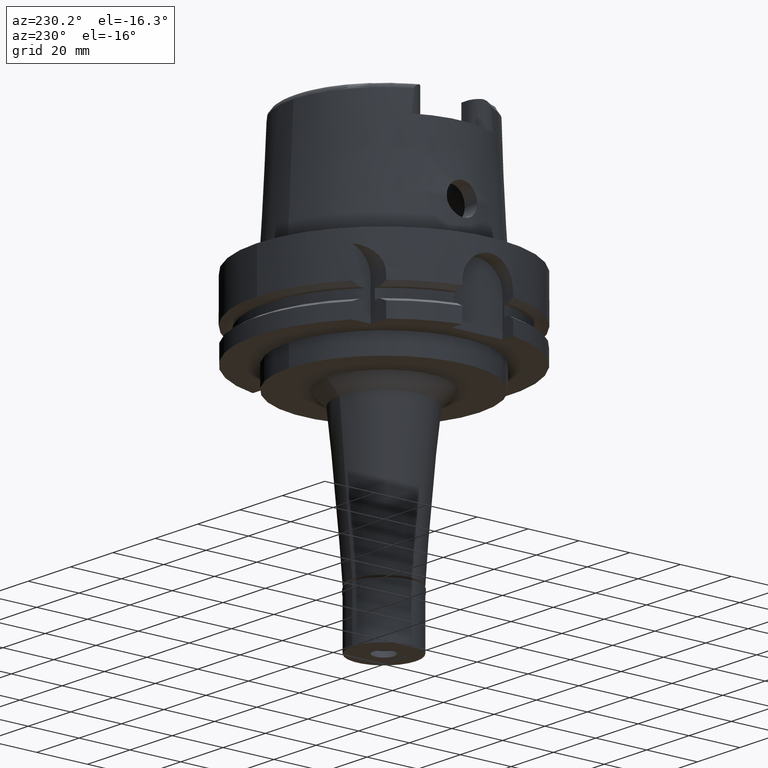
[diagram: clean part render]
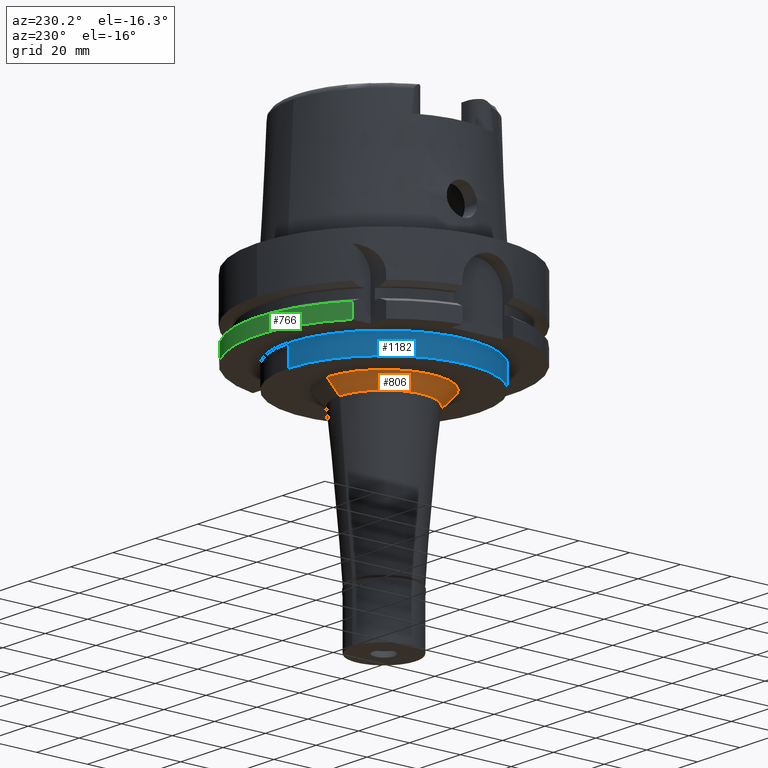
[diagram: same view with three faces highlighted in distinct colors, each labeled with its STEP entity id]
A machine part, auxiliary view with three faces highlighted in distinct colors.
Their STEP definitions:

[orange] entity #806 — the highlighted conical surface has half-angle 45 deg.
#64 = DIRECTION ( 'NONE',  ( 0.0000000000000000000, -0.7071067811865474617, -0.7071067811865474617 ) ) ;
#69 = EDGE_LOOP ( 'NONE', ( #3698, #1885, #2351, #2705 ) ) ;
#87 = CARTESIAN_POINT ( 'NONE',  ( 0.0000000000000000000, 22.46060722192000014, -37.00000000000000000 ) ) ;
#342 = CARTESIAN_POINT ( 'NONE',  ( 0.0000000000000000000, 22.46060722192000014, -37.00000000000000000 ) ) ;
#473 = DIRECTION ( 'NONE',  ( 0.0000000000000000000, 0.0000000000000000000, 1.000000000000000000 ) ) ;
#503 = CARTESIAN_POINT ( 'NONE',  ( 0.0000000000000000000, 0.0000000000000000000, -42.00000000000000000 ) ) ;
#574 = AXIS2_PLACEMENT_3D ( 'NONE', #2078, #1659, #2464 ) ;
#782 = CARTESIAN_POINT ( 'NONE',  ( 0.0000000000000000000, -22.46060722192000014, -37.00000000000000000 ) ) ;
#806 = ADVANCED_FACE ( 'NONE', ( #5165 ), #1758, .T. ) ;
#1074 = CARTESIAN_POINT ( 'NONE',  ( 0.0000000000000000000, -17.46060722192000014, -42.00000000000000000 ) ) ;
#1480 = AXIS2_PLACEMENT_3D ( 'NONE', #503, #2586, #3932 ) ;
#1659 = DIRECTION ( 'NONE',  ( 0.0000000000000000000, 0.0000000000000000000, -1.000000000000000000 ) ) ;
#1758 = CONICAL_SURFACE ( 'NONE', #4520, 19.96060722191999659, 0.7853981633972997312 ) ;
#1775 = DIRECTION ( 'NONE',  ( 0.0000000000000000000, 1.000000000000000000, 0.0000000000000000000 ) ) ;
#1812 = EDGE_CURVE ( 'NONE', #3992, #4165, #2143, .T. ) ;
#1816 = EDGE_CURVE ( 'NONE', #3992, #3560, #3094, .T. ) ;
#1885 = ORIENTED_EDGE ( 'NONE', *, *, #1812, .F. ) ;
#1894 = CARTESIAN_POINT ( 'NONE',  ( 0.0000000000000000000, 17.46060722192000014, -42.00000000000000000 ) ) ;
#1982 = EDGE_CURVE ( 'NONE', #4165, #4226, #3917, .T. ) ;
#2078 = CARTESIAN_POINT ( 'NONE',  ( 0.0000000000000000000, 0.0000000000000000000, -37.00000000000000000 ) ) ;
#2143 = LINE ( 'NONE', #782, #3815 ) ;
#2351 = ORIENTED_EDGE ( 'NONE', *, *, #1816, .T. ) ;
#2433 = DIRECTION ( 'NONE',  ( 0.0000000000000000000, 0.7071067811865474617, -0.7071067811865474617 ) ) ;
#2464 = DIRECTION ( 'NONE',  ( 0.0000000000000000000, -1.000000000000000000, 0.0000000000000000000 ) ) ;
#2586 = DIRECTION ( 'NONE',  ( 0.0000000000000000000, 0.0000000000000000000, -1.000000000000000000 ) ) ;
#2705 = ORIENTED_EDGE ( 'NONE', *, *, #4844, .T. ) ;
#3030 = CARTESIAN_POINT ( 'NONE',  ( 0.0000000000000000000, 0.0000000000000000000, -39.50000000000000000 ) ) ;
#3094 = CIRCLE ( 'NONE', #574, 22.46060722192000014 ) ;
#3560 = VERTEX_POINT ( 'NONE', #342 ) ;
#3698 = ORIENTED_EDGE ( 'NONE', *, *, #1982, .F. ) ;
#3815 = VECTOR ( 'NONE', #2433, 1000.000000000000114 ) ;
#3917 = CIRCLE ( 'NONE', #1480, 17.46060722192000014 ) ;
#3929 = CARTESIAN_POINT ( 'NONE',  ( 0.0000000000000000000, -22.46060722192000014, -37.00000000000000000 ) ) ;
#3932 = DIRECTION ( 'NONE',  ( 0.0000000000000000000, -1.000000000000000000, 0.0000000000000000000 ) ) ;
#3992 = VERTEX_POINT ( 'NONE', #3929 ) ;
#4165 = VERTEX_POINT ( 'NONE', #1074 ) ;
#4226 = VERTEX_POINT ( 'NONE', #1894 ) ;
#4520 = AXIS2_PLACEMENT_3D ( 'NONE', #3030, #473, #1775 ) ;
#4785 = LINE ( 'NONE', #87, #5350 ) ;
#4844 = EDGE_CURVE ( 'NONE', #3560, #4226, #4785, .T. ) ;
#5165 = FACE_OUTER_BOUND ( 'NONE', #69, .T. ) ;
#5350 = VECTOR ( 'NONE', #64, 1000.000000000000114 ) ;

[blue] entity #1182 — the highlighted cylindrical surface (partial cylindrical patch) has radius 37.5 mm, axis along (0, 0, 1).
#45 = AXIS2_PLACEMENT_3D ( 'NONE', #705, #2004, #1218 ) ;
#156 = DIRECTION ( 'NONE',  ( 0.0000000000000000000, 1.000000000000000000, 0.0000000000000000000 ) ) ;
#258 = ORIENTED_EDGE ( 'NONE', *, *, #2012, .T. ) ;
#263 = CARTESIAN_POINT ( 'NONE',  ( 0.0000000000000000000, -37.50000000000000000, -29.00000000000000000 ) ) ;
#319 = CARTESIAN_POINT ( 'NONE',  ( 0.0000000000000000000, -37.50000000000000000, -37.00000000000000000 ) ) ;
#436 = EDGE_LOOP ( 'NONE', ( #3121, #2441, #2720, #258 ) ) ;
#647 = VECTOR ( 'NONE', #4053, 1000.000000000000000 ) ;
#705 = CARTESIAN_POINT ( 'NONE',  ( 0.0000000000000000000, 0.0000000000000000000, -121.9899999999999949 ) ) ;
#838 = EDGE_CURVE ( 'NONE', #1177, #1202, #5408, .T. ) ;
#996 = DIRECTION ( 'NONE',  ( 0.0000000000000000000, 0.0000000000000000000, 1.000000000000000000 ) ) ;
#1000 = CARTESIAN_POINT ( 'NONE',  ( 0.0000000000000000000, 37.50000000000000000, -37.00000000000000000 ) ) ;
#1177 = VERTEX_POINT ( 'NONE', #2934 ) ;
#1182 = ADVANCED_FACE ( 'NONE', ( #2843 ), #4617, .T. ) ;
#1202 = VERTEX_POINT ( 'NONE', #319 ) ;
#1218 = DIRECTION ( 'NONE',  ( 0.0000000000000000000, 1.000000000000000000, 0.0000000000000000000 ) ) ;
#1292 = VERTEX_POINT ( 'NONE', #2209 ) ;
#1822 = CARTESIAN_POINT ( 'NONE',  ( 0.0000000000000000000, 37.50000000000000000, -29.00000000000000000 ) ) ;
#2004 = DIRECTION ( 'NONE',  ( 0.0000000000000000000, 0.0000000000000000000, 1.000000000000000000 ) ) ;
#2012 = EDGE_CURVE ( 'NONE', #1292, #3281, #2633, .T. ) ;
#2209 = CARTESIAN_POINT ( 'NONE',  ( 0.0000000000000000000, 37.50000000000000000, -29.00000000000000000 ) ) ;
#2283 = CIRCLE ( 'NONE', #5255, 37.50000000000000000 ) ;
#2441 = ORIENTED_EDGE ( 'NONE', *, *, #838, .F. ) ;
#2633 = LINE ( 'NONE', #1822, #4624 ) ;
#2720 = ORIENTED_EDGE ( 'NONE', *, *, #3452, .T. ) ;
#2843 = FACE_OUTER_BOUND ( 'NONE', #436, .T. ) ;
#2934 = CARTESIAN_POINT ( 'NONE',  ( 0.0000000000000000000, -37.50000000000000000, -29.00000000000000000 ) ) ;
#3121 = ORIENTED_EDGE ( 'NONE', *, *, #4395, .T. ) ;
#3165 = CARTESIAN_POINT ( 'NONE',  ( 0.0000000000000000000, 0.0000000000000000000, -29.00000000000000000 ) ) ;
#3195 = DIRECTION ( 'NONE',  ( 0.0000000000000000000, -1.000000000000000000, 0.0000000000000000000 ) ) ;
#3281 = VERTEX_POINT ( 'NONE', #1000 ) ;
#3452 = EDGE_CURVE ( 'NONE', #1177, #1292, #2283, .T. ) ;
#3512 = DIRECTION ( 'NONE',  ( 0.0000000000000000000, 0.0000000000000000000, -1.000000000000000000 ) ) ;
#3549 = AXIS2_PLACEMENT_3D ( 'NONE', #4849, #996, #156 ) ;
#3622 = DIRECTION ( 'NONE',  ( 0.0000000000000000000, 0.0000000000000000000, -1.000000000000000000 ) ) ;
#4053 = DIRECTION ( 'NONE',  ( 0.0000000000000000000, 0.0000000000000000000, -1.000000000000000000 ) ) ;
#4395 = EDGE_CURVE ( 'NONE', #3281, #1202, #4532, .T. ) ;
#4532 = CIRCLE ( 'NONE', #3549, 37.50000000000000000 ) ;
#4617 = CYLINDRICAL_SURFACE ( 'NONE', #45, 37.50000000000000000 ) ;
#4624 = VECTOR ( 'NONE', #3512, 1000.000000000000000 ) ;
#4849 = CARTESIAN_POINT ( 'NONE',  ( 0.0000000000000000000, 0.0000000000000000000, -37.00000000000000000 ) ) ;
#5255 = AXIS2_PLACEMENT_3D ( 'NONE', #3165, #3622, #3195 ) ;
#5408 = LINE ( 'NONE', #263, #647 ) ;

[green] entity #766 — the highlighted cylindrical surface (partial cylindrical patch) has radius 50 mm, axis along (0, 0, 1).
#149 = DIRECTION ( 'NONE',  ( 0.0000000000000000000, 0.0000000000000000000, 1.000000000000000000 ) ) ;
#519 = CARTESIAN_POINT ( 'NONE',  ( -31.50000355985999789, 38.82975374283000036, -23.24760820811999906 ) ) ;
#567 = DIRECTION ( 'NONE',  ( 0.0000000000000000000, 0.0000000000000000000, -1.000000000000000000 ) ) ;
#658 = VERTEX_POINT ( 'NONE', #1398 ) ;
#766 = ADVANCED_FACE ( 'NONE', ( #995 ), #3873, .T. ) ;
#842 = ORIENTED_EDGE ( 'NONE', *, *, #4293, .T. ) ;
#995 = FACE_OUTER_BOUND ( 'NONE', #1078, .T. ) ;
#1078 = EDGE_LOOP ( 'NONE', ( #842, #2428, #3326, #3862 ) ) ;
#1249 = CARTESIAN_POINT ( 'NONE',  ( 48.77499359303000404, 11.00000000000000000, -29.00000000000000000 ) ) ;
#1253 = EDGE_CURVE ( 'NONE', #5492, #2064, #1838, .T. ) ;
#1366 = CARTESIAN_POINT ( 'NONE',  ( 48.77499359303000404, 11.00000000000000000, -29.00000000000000000 ) ) ;
#1390 = VECTOR ( 'NONE', #4292, 1000.000000000000000 ) ;
#1398 = CARTESIAN_POINT ( 'NONE',  ( -31.50000000000000000, 38.82975663071000128, -29.00000000000000000 ) ) ;
#1495 = EDGE_CURVE ( 'NONE', #5458, #658, #4704, .T. ) ;
#1819 = DIRECTION ( 'NONE',  ( 0.0000000000000000000, 1.000000000000000000, 0.0000000000000000000 ) ) ;
#1838 = LINE ( 'NONE', #1366, #3172 ) ;
#1936 = AXIS2_PLACEMENT_3D ( 'NONE', #5272, #149, #2312 ) ;
#2064 = VERTEX_POINT ( 'NONE', #5252 ) ;
#2312 = DIRECTION ( 'NONE',  ( 0.0000000000000000000, 1.000000000000000000, 0.0000000000000000000 ) ) ;
#2428 = ORIENTED_EDGE ( 'NONE', *, *, #1253, .F. ) ;
#2732 = CARTESIAN_POINT ( 'NONE',  ( 0.0000000000000000000, 0.0000000000000000000, -23.24759526419000011 ) ) ;
#2917 = CIRCLE ( 'NONE', #3631, 50.00000000000000711 ) ;
#3172 = VECTOR ( 'NONE', #4349, 1000.000000000000000 ) ;
#3326 = ORIENTED_EDGE ( 'NONE', *, *, #4661, .T. ) ;
#3474 = CIRCLE ( 'NONE', #1936, 50.00000000000000000 ) ;
#3585 = DIRECTION ( 'NONE',  ( -0.6299999999999789102, 0.7765951326141738997, 0.0000000000000000000 ) ) ;
#3631 = AXIS2_PLACEMENT_3D ( 'NONE', #2732, #567, #3585 ) ;
#3862 = ORIENTED_EDGE ( 'NONE', *, *, #1495, .F. ) ;
#3873 = CYLINDRICAL_SURFACE ( 'NONE', #5525, 50.00000000000000000 ) ;
#4292 = DIRECTION ( 'NONE',  ( 6.188494047474892859E-07, 5.020316378013912240E-07, -0.9999999999996824762 ) ) ;
#4293 = EDGE_CURVE ( 'NONE', #5458, #2064, #2917, .T. ) ;
#4330 = DIRECTION ( 'NONE',  ( 0.0000000000000000000, 0.0000000000000000000, 1.000000000000000000 ) ) ;
#4349 = DIRECTION ( 'NONE',  ( -8.399427413532000465E-14, -2.068976605539000027E-14, 1.000000000000000000 ) ) ;
#4661 = EDGE_CURVE ( 'NONE', #5492, #658, #3474, .T. ) ;
#4704 = LINE ( 'NONE', #5493, #1390 ) ;
#4775 = CARTESIAN_POINT ( 'NONE',  ( 0.0000000000000000000, 0.0000000000000000000, -121.9899999999999949 ) ) ;
#5252 = CARTESIAN_POINT ( 'NONE',  ( 48.77499359303000404, 11.00000000000000000, -23.24759526419000011 ) ) ;
#5272 = CARTESIAN_POINT ( 'NONE',  ( 0.0000000000000000000, 0.0000000000000000000, -29.00000000000000000 ) ) ;
#5458 = VERTEX_POINT ( 'NONE', #519 ) ;
#5492 = VERTEX_POINT ( 'NONE', #1249 ) ;
#5493 = CARTESIAN_POINT ( 'NONE',  ( -31.50000355985999789, 38.82975374283000036, -23.24760820811999906 ) ) ;
#5525 = AXIS2_PLACEMENT_3D ( 'NONE', #4775, #4330, #1819 ) ;